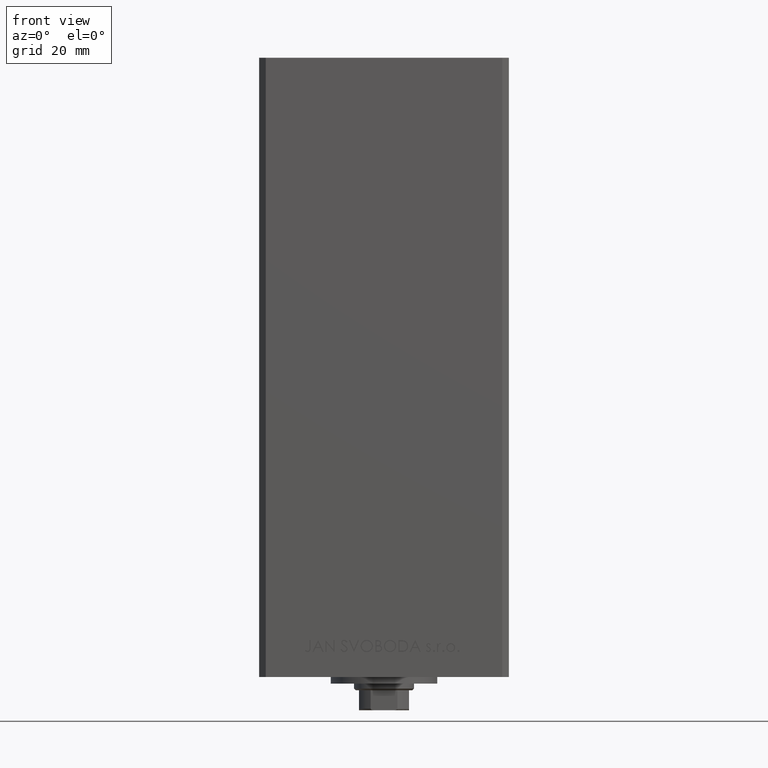
[diagram: clean part render]
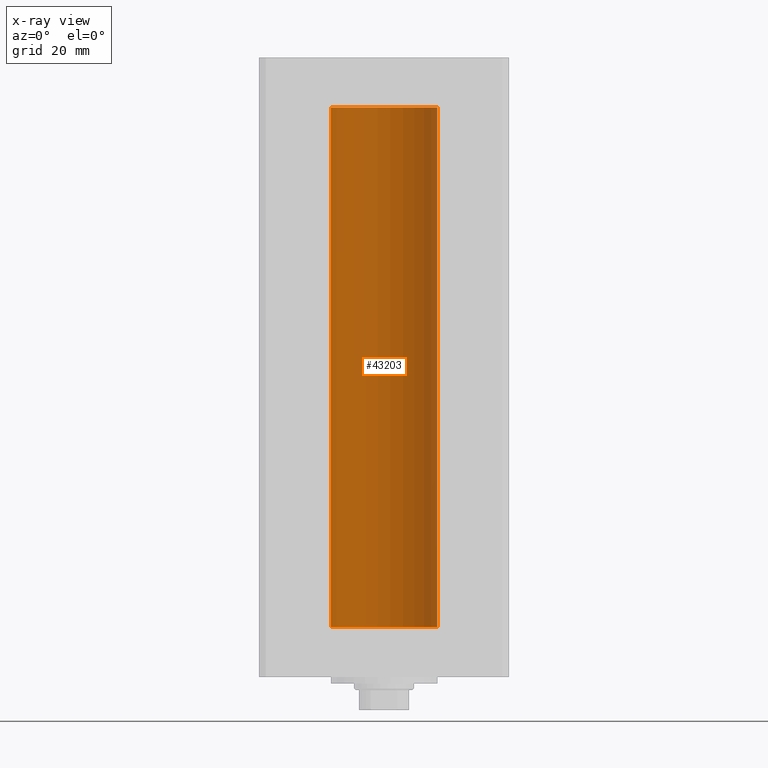
[diagram: x-ray — body ghosted, one internal face saturated and labeled with its STEP entity id]
A machine part, front view, then the same camera in x-ray: the body is ghosted and one INTERNAL B-rep face — a face not visible from any outside direction — is saturated and labeled: STEP entity #43203.
In plain terms, the highlighted cylindrical surface (partial cylindrical patch) has radius 16 mm, axis along (-0, -0, -1).
Its self-contained STEP definition (entity closure, byte-faithful):
#457 = FACE_OUTER_BOUND ( 'NONE', #40384, .T. ) ;
#796 = VECTOR ( 'NONE', #46766, 1000.000000000000000 ) ;
#1148 = ORIENTED_EDGE ( 'NONE', *, *, #43704, .T. ) ;
#2315 = CARTESIAN_POINT ( 'NONE',  ( 0.000000000000000000, 0.000000000000000000, 156.0000000000000000 ) ) ;
#2422 = CIRCLE ( 'NONE', #6358, 16.00000000000000000 ) ;
#4602 = EDGE_CURVE ( 'NONE', #15316, #6954, #2422, .T. ) ;
#5131 = CARTESIAN_POINT ( 'NONE',  ( 0.000000000000000000, 0.000000000000000000, 156.0000000000000000 ) ) ;
#5723 = ORIENTED_EDGE ( 'NONE', *, *, #15806, .F. ) ;
#5736 = AXIS2_PLACEMENT_3D ( 'NONE', #2315, #17134, #20596 ) ;
#6358 = AXIS2_PLACEMENT_3D ( 'NONE', #34885, #13122, #8668 ) ;
#6954 = VERTEX_POINT ( 'NONE', #24243 ) ;
#8668 = DIRECTION ( 'NONE',  ( 1.000000000000000000, 0.000000000000000000, 0.000000000000000000 ) ) ;
#9434 = AXIS2_PLACEMENT_3D ( 'NONE', #5131, #23428, #16014 ) ;
#11546 = ORIENTED_EDGE ( 'NONE', *, *, #4602, .F. ) ;
#13122 = DIRECTION ( 'NONE',  ( -0.000000000000000000, 0.000000000000000000, 1.000000000000000000 ) ) ;
#14192 = EDGE_CURVE ( 'NONE', #22945, #37993, #34943, .T. ) ;
#15316 = VERTEX_POINT ( 'NONE', #37698 ) ;
#15806 = EDGE_CURVE ( 'NONE', #22945, #15316, #17079, .T. ) ;
#16014 = DIRECTION ( 'NONE',  ( -1.000000000000000000, 0.000000000000000000, 0.000000000000000000 ) ) ;
#17079 = LINE ( 'NONE', #28940, #31837 ) ;
#17134 = DIRECTION ( 'NONE',  ( -0.000000000000000000, 0.000000000000000000, 1.000000000000000000 ) ) ;
#20021 = LINE ( 'NONE', #30916, #796 ) ;
#20461 = ORIENTED_EDGE ( 'NONE', *, *, #14192, .T. ) ;
#20596 = DIRECTION ( 'NONE',  ( 1.000000000000000000, 0.000000000000000000, 0.000000000000000000 ) ) ;
#22945 = VERTEX_POINT ( 'NONE', #40173 ) ;
#23428 = DIRECTION ( 'NONE',  ( -0.000000000000000000, -0.000000000000000000, -1.000000000000000000 ) ) ;
#24243 = CARTESIAN_POINT ( 'NONE',  ( -16.00000000000000000, 0.000000000000000000, 0.000000000000000000 ) ) ;
#28940 = CARTESIAN_POINT ( 'NONE',  ( 16.00000000000000000, 1.959434878635765131E-15, 156.0000000000000000 ) ) ;
#30916 = CARTESIAN_POINT ( 'NONE',  ( -16.00000000000000000, 0.000000000000000000, 156.0000000000000000 ) ) ;
#31837 = VECTOR ( 'NONE', #43572, 1000.000000000000000 ) ;
#34885 = CARTESIAN_POINT ( 'NONE',  ( 0.000000000000000000, 0.000000000000000000, 0.000000000000000000 ) ) ;
#34943 = CIRCLE ( 'NONE', #5736, 16.00000000000000000 ) ;
#37698 = CARTESIAN_POINT ( 'NONE',  ( 16.00000000000000000, 1.959434878635765131E-15, 0.000000000000000000 ) ) ;
#37993 = VERTEX_POINT ( 'NONE', #39273 ) ;
#39026 = CYLINDRICAL_SURFACE ( 'NONE', #9434, 16.00000000000000000 ) ;
#39273 = CARTESIAN_POINT ( 'NONE',  ( -16.00000000000000000, 0.000000000000000000, 156.0000000000000000 ) ) ;
#40173 = CARTESIAN_POINT ( 'NONE',  ( 16.00000000000000000, 1.959434878635765131E-15, 156.0000000000000000 ) ) ;
#40384 = EDGE_LOOP ( 'NONE', ( #5723, #20461, #1148, #11546 ) ) ;
#43203 = ADVANCED_FACE ( 'NONE', ( #457 ), #39026, .F. ) ;
#43572 = DIRECTION ( 'NONE',  ( -0.000000000000000000, -0.000000000000000000, -1.000000000000000000 ) ) ;
#43704 = EDGE_CURVE ( 'NONE', #37993, #6954, #20021, .T. ) ;
#46766 = DIRECTION ( 'NONE',  ( -0.000000000000000000, -0.000000000000000000, -1.000000000000000000 ) ) ;